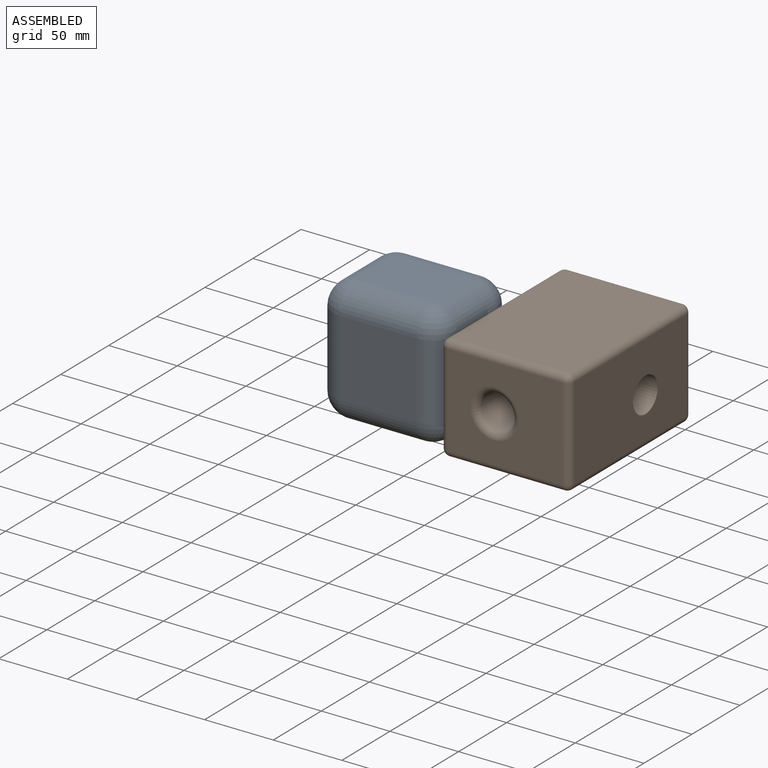
[diagram: assembled view]
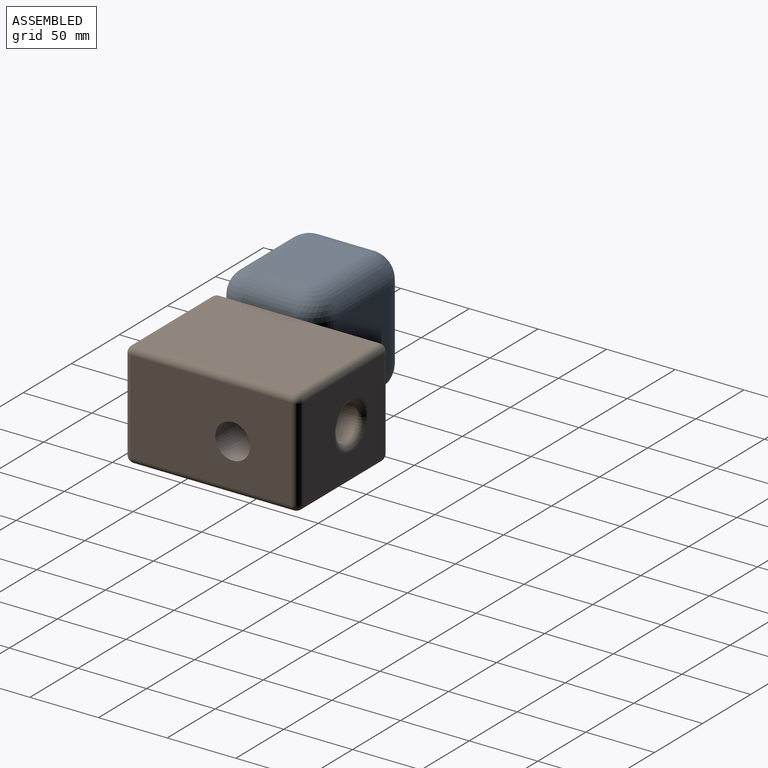
[diagram: assembled view, second angle]
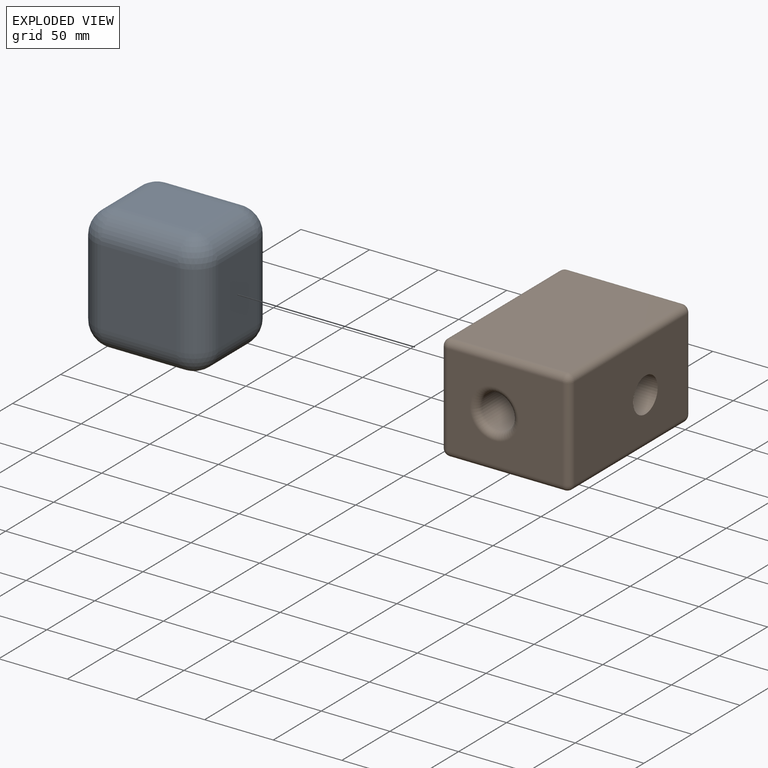
[diagram: exploded view]
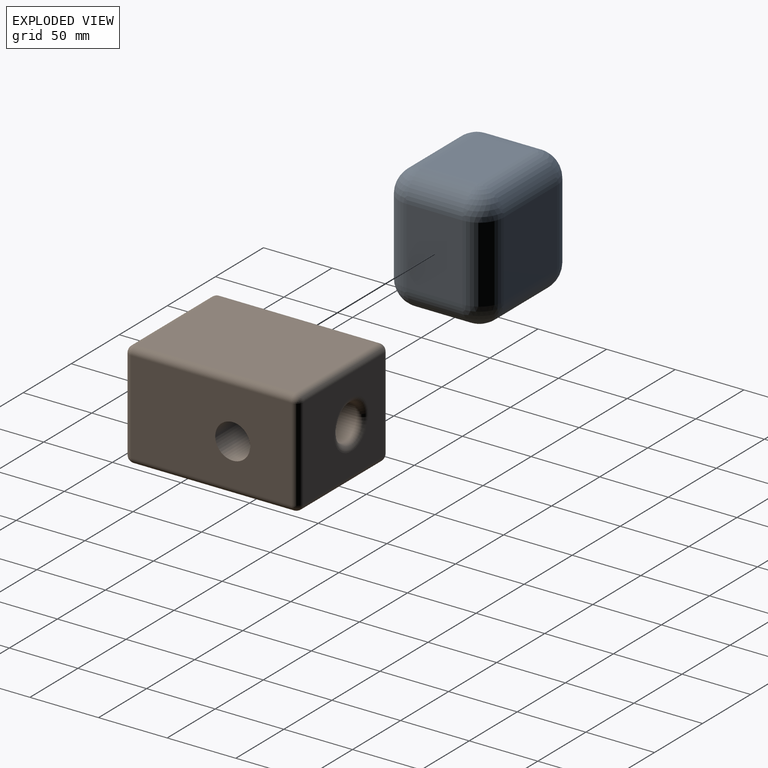
[diagram: exploded view, second angle]
ASSEMBLY  parts=2 mates=3
PART A: 26 faces, bbox 90.9x76.2x90.9 mm
  f0: plane 55.32x40.64mm, normal (0,0,1), area 2248.1mm2, adj f14,f19,f22,f25
  f1: plane 55.32x40.64mm, normal (-1,0,0), area 2248.1mm2, adj f11,f20,f21,f25
  f2: plane 55.32x40.64mm, normal (0,0,-1), area 2248.1mm2, adj f6,f10,f11,f12
  f3: plane 55.32x40.64mm, normal (1,0,0), area 2248.1mm2, adj f6,f9,f13,f14
  f4: plane 55.32x55.32mm, normal (0,-1,0), area 3059.9mm2, adj f9,f10,f19,f20
  f5: plane 55.32x55.32mm, normal (0,1,0), area 3059.9mm2, adj f12,f13,f21,f22
  f6: cylinder r=17.78mm len=40.64mm, axis (0,-1,0), area 1135mm2, adj f2,f3,f7,f8
  f7: sphere r=17.78mm, area 496.6mm2, adj f6,f9,f10
  f8: sphere r=17.78mm, area 496.6mm2, adj f6,f12,f13
  f9: cylinder r=17.78mm len=55.32mm, axis (0,0,-1), area 1544.9mm2, adj f3,f4,f7,f15
  f10: cylinder r=17.78mm len=55.32mm, axis (-1,0,0), area 1544.9mm2, adj f2,f4,f7,f16
  f11: cylinder r=17.78mm len=40.64mm, axis (0,1,0), area 1135mm2, adj f1,f2,f16,f17
  f12: cylinder r=17.78mm len=55.32mm, axis (1,0,0), area 1544.9mm2, adj f2,f5,f8,f17
  f13: cylinder r=17.78mm len=55.32mm, axis (0,0,1), area 1544.9mm2, adj f3,f5,f8,f18
  f14: cylinder r=17.78mm len=40.64mm, axis (0,1,0), area 1135mm2, adj f0,f3,f15,f18
  f15: sphere r=17.78mm, area 496.6mm2, adj f9,f14,f19
  f16: sphere r=17.78mm, area 496.6mm2, adj f10,f11,f20
  f17: sphere r=17.78mm, area 496.6mm2, adj f11,f12,f21
  f18: sphere r=17.78mm, area 496.6mm2, adj f13,f14,f22
  f19: cylinder r=17.78mm len=55.32mm, axis (1,0,0), area 1544.9mm2, adj f0,f4,f15,f23
  f20: cylinder r=17.78mm len=55.32mm, axis (0,0,1), area 1544.9mm2, adj f1,f4,f16,f23
  f21: cylinder r=17.78mm len=55.32mm, axis (0,0,-1), area 1544.9mm2, adj f1,f5,f17,f24
  f22: cylinder r=17.78mm len=55.32mm, axis (-1,0,0), area 1544.9mm2, adj f0,f5,f18,f24
  f23: sphere r=17.78mm, area 496.6mm2, adj f19,f20,f25
  f24: sphere r=17.78mm, area 496.6mm2, adj f21,f22,f25
  f25: cylinder r=17.78mm len=40.64mm, axis (0,-1,0), area 1135mm2, adj f0,f1,f23,f24
PART B: 30 faces, bbox 94.1x127x77.5 mm
  f0: cylinder r=12.7mm len=116.84mm, axis (0,-1,0), area 8071.8mm2, adj f7,f8,f29
  f1: plane 116.84x83.89mm, normal (0,0,-1), area 9802.1mm2, adj f17,f22,f25,f28
  f2: plane 116.84x67.31mm, normal (1,0,0), area 7357.5mm2, adj f14,f23,f24,f28,f29
  f3: plane 116.84x83.89mm, normal (0,0,1), area 9802.1mm2, adj f9,f13,f14,f15
  f4: plane 116.84x67.31mm, normal (-1,0,0), area 7357.5mm2, adj f9,f12,f16,f17,f29
  f5: plane 83.89x67.31mm, normal (0,-1,0), area 4653.5mm2, adj f8,f12,f13,f22,f23
  f6: plane 83.89x67.31mm, normal (0,1,0), area 4653.5mm2, adj f7,f15,f16,f24,f25
  f7: torus R=17.78mm, axis (0,-1,0), area 729.3mm2, adj f0,f6
  f8: torus R=17.78mm, axis (0,-1,0), area 729.3mm2, adj f0,f5
  f9: cylinder r=5.08mm len=116.84mm, axis (0,-1,0), area 932.3mm2, adj f3,f4,f10,f11
  f10: sphere r=5.08mm, area 40.5mm2, adj f9,f12,f13
  f11: sphere r=5.08mm, area 40.5mm2, adj f9,f15,f16
  f12: cylinder r=5.08mm len=67.31mm, axis (0,0,1), area 537.1mm2, adj f4,f5,f10,f18
  f13: cylinder r=5.08mm len=83.89mm, axis (1,0,0), area 669.4mm2, adj f3,f5,f10,f19
  f14: cylinder r=5.08mm len=116.84mm, axis (0,1,0), area 932.3mm2, adj f2,f3,f19,f20
  f15: cylinder r=5.08mm len=83.89mm, axis (-1,0,0), area 669.4mm2, adj f3,f6,f11,f20
  f16: cylinder r=5.08mm len=67.31mm, axis (0,0,-1), area 537.1mm2, adj f4,f6,f11,f21
  f17: cylinder r=5.08mm len=116.84mm, axis (0,1,0), area 932.3mm2, adj f1,f4,f18,f21
  f18: sphere r=5.08mm, area 40.5mm2, adj f12,f17,f22
  f19: sphere r=5.08mm, area 40.5mm2, adj f13,f14,f23
  f20: sphere r=5.08mm, area 40.5mm2, adj f14,f15,f24
  f21: sphere r=5.08mm, area 40.5mm2, adj f16,f17,f25
  f22: cylinder r=5.08mm len=83.89mm, axis (-1,0,0), area 669.4mm2, adj f1,f5,f18,f26
  f23: cylinder r=5.08mm len=67.31mm, axis (0,0,-1), area 537.1mm2, adj f2,f5,f19,f26
  f24: cylinder r=5.08mm len=67.31mm, axis (0,0,1), area 537.1mm2, adj f2,f6,f20,f27
  f25: cylinder r=5.08mm len=83.89mm, axis (1,0,0), area 669.4mm2, adj f1,f6,f21,f27
  f26: sphere r=5.08mm, area 40.5mm2, adj f22,f23,f28
  f27: sphere r=5.08mm, area 40.5mm2, adj f24,f25,f28
  f28: cylinder r=5.08mm len=116.84mm, axis (0,-1,0), area 932.3mm2, adj f1,f2,f26,f27
  f29: cylinder r=12.7mm len=94.05mm, axis (1,0,0), area 6253.4mm2, adj f0,f2,f4
PLACE A t=(-30.01,-2.49,-36.49)mm
PLACE B t=(86.67,48.31,-87.78)mm
MATE planar A.f2 <-> B.f1  axis (0,0,-1) through (-28.6,-40.59,-108.5)mm
MATE planar B.f13 <-> A.f3  axis (-1,0,0) through (16.83,-73.61,-36.11)mm
MATE planar B.f5 <-> A.f4  axis (0,-1,0) through (65.53,-78.69,-69.76)mm
